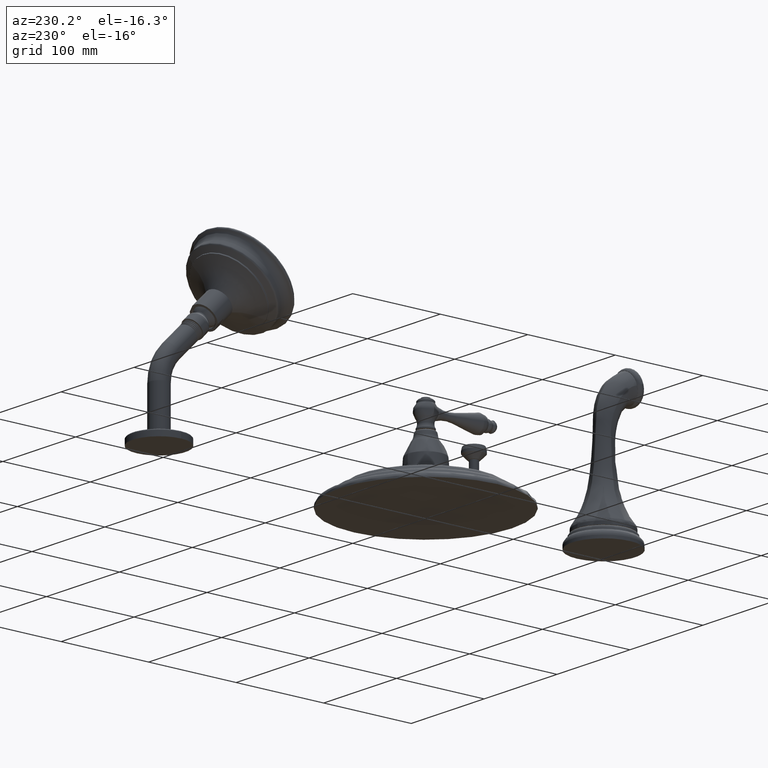
[diagram: clean part render]
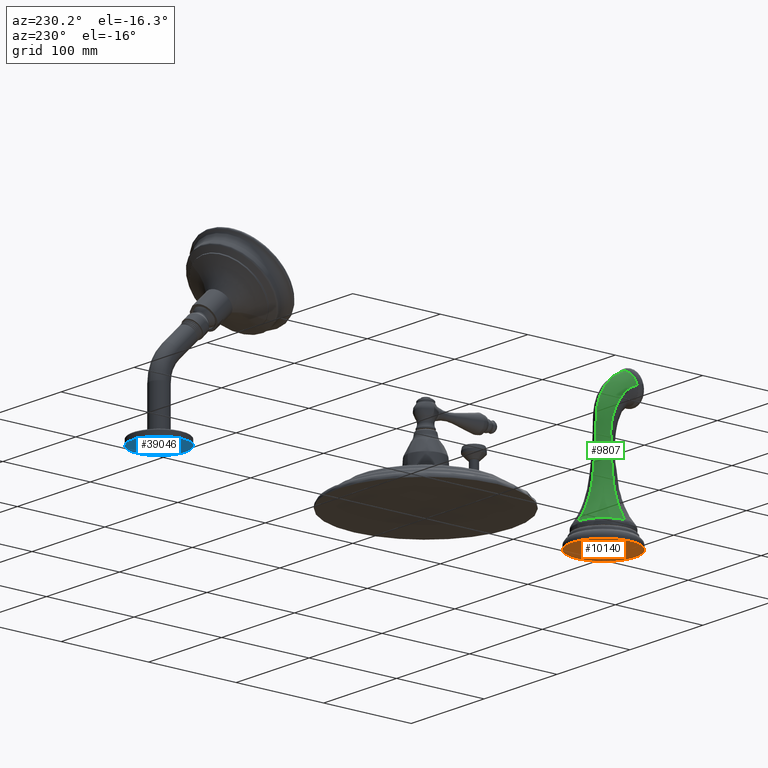
[diagram: same view with three faces highlighted in distinct colors, each labeled with its STEP entity id]
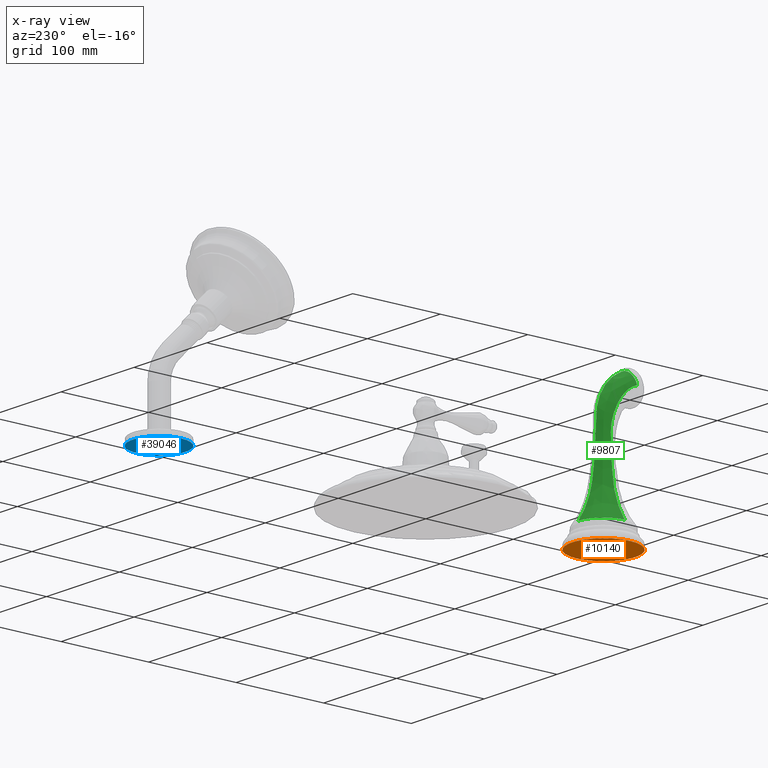
[diagram: x-ray of the same camera — body ghosted, the three highlighted faces saturated]
A machine part, auxiliary view with three faces highlighted in distinct colors.
The next image is the same camera in x-ray (body ghosted, the three faces saturated) — at least one of them is partly hidden behind the body in this view.
Their STEP definitions:

[orange] entity #10140 — the highlighted planar face has unit normal (0, 0, -1).
#8730=CARTESIAN_POINT('',(0.E0,-8.E0,0.E0));
#8731=DIRECTION('',(0.E0,0.E0,1.E0));
#8732=DIRECTION('',(-1.E0,0.E0,0.E0));
#8733=AXIS2_PLACEMENT_3D('',#8730,#8731,#8732);
#8743=CARTESIAN_POINT('',(0.E0,-8.E0,0.E0));
#8744=DIRECTION('',(0.E0,0.E0,-1.E0));
#8745=DIRECTION('',(-1.E0,0.E0,0.E0));
#8746=AXIS2_PLACEMENT_3D('',#8743,#8744,#8745);
#8764=CARTESIAN_POINT('',(-1.425E0,-8.E0,0.E0));
#8765=CARTESIAN_POINT('',(1.425E0,-8.E0,0.E0));
#8766=VERTEX_POINT('',#8764);
#8767=VERTEX_POINT('',#8765);
#10130=CARTESIAN_POINT('',(0.E0,-8.E0,0.E0));
#10131=DIRECTION('',(0.E0,0.E0,-1.E0));
#10132=DIRECTION('',(1.E0,0.E0,0.E0));
#10133=AXIS2_PLACEMENT_3D('',#10130,#10131,#10132);
#10134=PLANE('',#10133);
#10136=ORIENTED_EDGE('',*,*,#10135,.F.);
#10137=ORIENTED_EDGE('',*,*,#10120,.T.);
#10138=EDGE_LOOP('',(#10136,#10137));
#10139=FACE_OUTER_BOUND('',#10138,.F.);
#10140=ADVANCED_FACE('',(#10139),#10134,.T.);
#8734=CIRCLE('',#8733,1.425E0);
#8747=CIRCLE('',#8746,1.425E0);
#10120=EDGE_CURVE('',#8766,#8767,#8734,.T.);
#10135=EDGE_CURVE('',#8766,#8767,#8747,.T.);

[blue] entity #39046 — the highlighted planar face has unit normal (0, 0, -1).
#13049=CARTESIAN_POINT('',(0.E0,1.2E1,0.E0));
#13050=DIRECTION('',(0.E0,0.E0,1.E0));
#13051=DIRECTION('',(1.E0,0.E0,0.E0));
#13052=AXIS2_PLACEMENT_3D('',#13049,#13050,#13051);
#13054=CARTESIAN_POINT('',(0.E0,1.2E1,0.E0));
#13055=DIRECTION('',(0.E0,0.E0,-1.E0));
#13056=DIRECTION('',(1.E0,0.E0,0.E0));
#13057=AXIS2_PLACEMENT_3D('',#13054,#13055,#13056);
#34138=CARTESIAN_POINT('',(1.19E0,1.2E1,0.E0));
#34139=CARTESIAN_POINT('',(-1.19E0,1.2E1,0.E0));
#34140=VERTEX_POINT('',#34138);
#34141=VERTEX_POINT('',#34139);
#39037=CARTESIAN_POINT('',(0.E0,1.2E1,0.E0));
#39038=DIRECTION('',(0.E0,0.E0,-1.E0));
#39039=DIRECTION('',(-1.E0,0.E0,0.E0));
#39040=AXIS2_PLACEMENT_3D('',#39037,#39038,#39039);
#39041=PLANE('',#39040);
#39042=ORIENTED_EDGE('',*,*,#39030,.F.);
#39043=ORIENTED_EDGE('',*,*,#39019,.T.);
#39044=EDGE_LOOP('',(#39042,#39043));
#39045=FACE_OUTER_BOUND('',#39044,.F.);
#39046=ADVANCED_FACE('',(#39045),#39041,.T.);
#13053=CIRCLE('',#13052,1.19E0);
#13058=CIRCLE('',#13057,1.19E0);
#39019=EDGE_CURVE('',#34140,#34141,#13053,.T.);
#39030=EDGE_CURVE('',#34140,#34141,#13058,.T.);

[green] entity #9807 — the highlighted face is a freeform B-spline surface patch.
#8176=CARTESIAN_POINT('',(-7.087969589114E-12,-6.863279759927E0,
8.317716652312E-1));
#8248=CARTESIAN_POINT('',(0.E0,-8.815385568754E0,6.581615775398E0));
#8426=CARTESIAN_POINT('',(-6.362466257573E-1,-8.980058312882E0,
5.967048727690E0));
#8427=CARTESIAN_POINT('',(-6.362466257573E-1,-8.871701622522E0,
5.938014640013E0));
#8428=CARTESIAN_POINT('',(-6.226298542599E-1,-8.673438586693E0,
5.839737231137E0));
#8429=CARTESIAN_POINT('',(-5.749341128451E-1,-8.430683113720E0,
5.597810098959E0));
#8430=CARTESIAN_POINT('',(-5.237786746467E-1,-8.273326254666E0,
5.339209568681E0));
#8431=CARTESIAN_POINT('',(-4.827987102527E-1,-8.174048267443E0,
5.111189691136E0));
#8432=CARTESIAN_POINT('',(-4.537336415299E-1,-8.112804939938E0,
4.932872589252E0));
#8433=CARTESIAN_POINT('',(-4.280349562372E-1,-8.064686141295E0,
4.750505994858E0));
#8434=CARTESIAN_POINT('',(-4.074038385190E-1,-8.029609052083E0,
4.567399274393E0));
#8435=CARTESIAN_POINT('',(-3.958372093426E-1,-8.011152874988E0,
4.416774800060E0));
#8436=CARTESIAN_POINT('',(-3.908341089985E-1,-8.002851269955E0,
4.299397923622E0));
#8437=CARTESIAN_POINT('',(-3.895999174853E-1,-8.000255222405E0,
4.227016259826E0));
#8438=CARTESIAN_POINT('',(-3.899885836096E-1,-7.999951182802E0,
4.171512137149E0));
#8439=CARTESIAN_POINT('',(-3.908641714857E-1,-8.000027791249E0,
4.110588286457E0));
#8440=CARTESIAN_POINT('',(-3.926572374092E-1,-7.999979975375E0,
4.006722322181E0));
#8441=CARTESIAN_POINT('',(-3.964993559120E-1,-8.000006795614E0,
3.856929682730E0));
#8442=CARTESIAN_POINT('',(-4.029866002963E-1,-7.999998216827E0,
3.677854837556E0));
#8443=CARTESIAN_POINT('',(-4.142144242767E-1,-8.000001031224E0,
3.438979525963E0));
#8444=CARTESIAN_POINT('',(-4.329385076052E-1,-7.999999641503E0,
3.140701727960E0));
#8445=CARTESIAN_POINT('',(-4.583776371876E-1,-8.000000044379E0,
2.842899489879E0));
#8446=CARTESIAN_POINT('',(-4.817761022693E-1,-7.999999991816E0,
2.604953116269E0));
#8447=CARTESIAN_POINT('',(-5.101122290437E-1,-8.000000004725E0,
2.367501206055E0));
#8448=CARTESIAN_POINT('',(-5.685475604135E-1,-7.999999998394E0,
2.074002649391E0));
#8449=CARTESIAN_POINT('',(-6.710957148128E-1,-8.000000000431E0,
1.729944856828E0));
#8450=CARTESIAN_POINT('',(-8.433779836439E-1,-7.999999999730E0,
1.305504052936E0));
#8451=CARTESIAN_POINT('',(-1.012043530132E0,-8.000000000159E0,
1.011135780185E0));
#8452=CARTESIAN_POINT('',(-1.136721926895E0,-8.000000000182E0,
8.317705888197E-1));
#8454=CARTESIAN_POINT('',(-6.362466257573E-1,-8.980058312882E0,
5.967048727690E0));
#8462=CARTESIAN_POINT('',(0.E0,-8.815385568754E0,6.581615775398E0));
#8463=CARTESIAN_POINT('',(0.E0,-8.695893820128E0,6.522506674436E0));
#8464=CARTESIAN_POINT('',(0.E0,-8.468465494103E0,6.380957691460E0));
#8465=CARTESIAN_POINT('',(0.E0,-8.174602691440E0,6.106910266891E0));
#8466=CARTESIAN_POINT('',(0.E0,-7.978476817197E0,5.835496546680E0));
#8467=CARTESIAN_POINT('',(0.E0,-7.855173110165E0,5.598740596514E0));
#8468=CARTESIAN_POINT('',(0.E0,-7.780354085397E0,5.413045781095E0));
#8469=CARTESIAN_POINT('',(0.E0,-7.723855096451E0,5.220969500507E0));
#8470=CARTESIAN_POINT('',(0.E0,-7.686402798137E0,5.024323979807E0));
#8471=CARTESIAN_POINT('',(0.E0,-7.670736616694E0,4.858186052831E0));
#8472=CARTESIAN_POINT('',(0.E0,-7.668988524019E0,4.724862213888E0));
#8473=CARTESIAN_POINT('',(0.E0,-7.668540882498E0,4.641547030664E0));
#8474=CARTESIAN_POINT('',(0.E0,-7.667501118946E0,4.574897611035E0));
#8475=CARTESIAN_POINT('',(0.E0,-7.666372334715E0,4.508251263144E0));
#8476=CARTESIAN_POINT('',(0.E0,-7.663863807217E0,4.391629697954E0));
#8477=CARTESIAN_POINT('',(0.E0,-7.658749916400E0,4.225064525694E0));
#8478=CARTESIAN_POINT('',(0.E0,-7.650257938526E0,4.025273117790E0));
#8479=CARTESIAN_POINT('',(0.E0,-7.635750631925E0,3.759038943521E0));
#8480=CARTESIAN_POINT('',(0.E0,-7.611683232963E0,3.426603002622E0));
#8481=CARTESIAN_POINT('',(0.E0,-7.579666458831E0,3.094845180826E0));
#8482=CARTESIAN_POINT('',(0.E0,-7.549389700513E0,2.829930837161E0));
#8483=CARTESIAN_POINT('',(-1.162970910578E-14,-7.515684351850E0,
2.565477220136E0));
#8484=CARTESIAN_POINT('',(9.415616916801E-14,-7.469733371847E0,
2.235099502962E0));
#8485=CARTESIAN_POINT('',(-3.436852780836E-13,-7.369222741809E0,
1.847263426998E0));
#8486=CARTESIAN_POINT('',(1.738354275685E-12,-7.189594839474E0,
1.366468168995E0));
#8487=CARTESIAN_POINT('',(-7.087971200678E-12,-7.003679167502E0,
1.033743546435E0));
#8488=CARTESIAN_POINT('',(-7.087969589114E-12,-6.863279759927E0,
8.317716652312E-1));
#8490=CARTESIAN_POINT('',(0.E0,-8.815385568754E0,6.581615775398E0));
#8491=CARTESIAN_POINT('',(-8.328448855626E-2,-8.815385568754E0,
6.581615775398E0));
#8492=CARTESIAN_POINT('',(-2.498146402672E-1,-8.823959873938E0,
6.549616032813E0));
#8493=CARTESIAN_POINT('',(-4.616082816832E-1,-8.860585298206E0,
6.412928088597E0));
#8494=CARTESIAN_POINT('',(-6.031180544800E-1,-8.915401526236E0,
6.208351140509E0));
#8495=CARTESIAN_POINT('',(-6.362466257573E-1,-8.958502701082E0,
6.047495366116E0));
#8496=CARTESIAN_POINT('',(-6.362466257573E-1,-8.980058312882E0,
5.967048727690E0));
#8567=CARTESIAN_POINT('',(-7.087969589114E-12,-6.863279759927E0,
8.317716652312E-1));
#8568=CARTESIAN_POINT('',(-2.243136271801E-2,-6.863283157553E0,
8.317731653359E-1));
#8569=CARTESIAN_POINT('',(-6.727970818286E-2,-6.864589915539E0,
8.317397076192E-1));
#8570=CARTESIAN_POINT('',(-1.343300310455E-1,-6.870453261721E0,
8.316405824382E-1));
#8571=CARTESIAN_POINT('',(-2.008368725531E-1,-6.880194099123E0,
8.315299253693E-1));
#8572=CARTESIAN_POINT('',(-2.665130441596E-1,-6.893757952676E0,
8.314463810276E-1));
#8573=CARTESIAN_POINT('',(-3.311296889046E-1,-6.911077651670E0,
8.313661138573E-1));
#8574=CARTESIAN_POINT('',(-3.945047564731E-1,-6.932098033422E0,
8.312579207955E-1));
#8575=CARTESIAN_POINT('',(-4.564150501776E-1,-6.956719770985E0,
8.311226302050E-1));
#8576=CARTESIAN_POINT('',(-5.166276352312E-1,-6.984837614584E0,
8.309524952218E-1));
#8577=CARTESIAN_POINT('',(-5.749383324795E-1,-7.016343122792E0,
8.307554595629E-1));
#8578=CARTESIAN_POINT('',(-6.311852975862E-1,-7.051115965484E0,
8.305793061942E-1));
#8579=CARTESIAN_POINT('',(-6.851984435172E-1,-7.089039962093E0,
8.304769185983E-1));
#8580=CARTESIAN_POINT('',(-7.368226908570E-1,-7.129980502261E0,
8.304252879254E-1));
#8581=CARTESIAN_POINT('',(-7.859077125989E-1,-7.173804622072E0,
8.303791875852E-1));
#8582=CARTESIAN_POINT('',(-8.323003558335E-1,-7.220390417533E0,
8.302900987586E-1));
#8583=CARTESIAN_POINT('',(-8.758721710633E-1,-7.269586243474E0,
8.302048801609E-1));
#8584=CARTESIAN_POINT('',(-9.164946485191E-1,-7.321237133885E0,
8.301658207355E-1));
#8585=CARTESIAN_POINT('',(-9.540257481477E-1,-7.375187383488E0,
8.302051701192E-1));
#8586=CARTESIAN_POINT('',(-9.883435713317E-1,-7.431258491155E0,
8.302957716269E-1));
#8587=CARTESIAN_POINT('',(-1.019329931894E0,-7.489267214556E0,
8.304117420994E-1));
#8588=CARTESIAN_POINT('',(-1.046886326438E0,-7.549048180208E0,
8.305335178943E-1));
#8589=CARTESIAN_POINT('',(-1.070948104417E0,-7.610437340999E0,
8.306725652539E-1));
#8590=CARTESIAN_POINT('',(-1.091431213900E0,-7.673291834647E0,
8.308232714328E-1));
#8591=CARTESIAN_POINT('',(-1.108221670370E0,-7.737375218742E0,
8.309730970497E-1));
#8592=CARTESIAN_POINT('',(-1.121244812174E0,-7.802390060051E0,
8.311389051506E-1));
#8593=CARTESIAN_POINT('',(-1.130447439951E0,-7.868045911836E0,
8.313454951371E-1));
#8594=CARTESIAN_POINT('',(-1.135808559072E0,-7.934044492519E0,
8.315864689790E-1));
#8595=CARTESIAN_POINT('',(-1.136839009150E0,-7.978037285073E0,
8.317188651882E-1));
#8596=CARTESIAN_POINT('',(-1.136721926895E0,-8.000000000182E0,
8.317705888197E-1));
#8769=VERTEX_POINT('',#8248);
#8771=VERTEX_POINT('',#8454);
#8777=VERTEX_POINT('',#8176);
#8787=VERTEX_POINT('',#8596);
#9609=CARTESIAN_POINT('',(-1.140571304223E0,-7.999999999997E0,
8.262432758642E-1));
#9610=CARTESIAN_POINT('',(-1.014286163503E0,-7.999999999976E0,
1.007225672747E0));
#9611=CARTESIAN_POINT('',(-8.442234230497E-1,-7.999999999773E0,
1.303421236998E0));
#9612=CARTESIAN_POINT('',(-6.710957123698E-1,-8.000000000422E0,
1.729944855130E0));
#9613=CARTESIAN_POINT('',(-5.685475610826E-1,-7.999999998397E0,
2.074002649856E0));
#9614=CARTESIAN_POINT('',(-5.101122289608E-1,-8.000000004725E0,
2.367501205998E0));
#9615=CARTESIAN_POINT('',(-4.817761022845E-1,-7.999999991816E0,
2.604953116280E0));
#9616=CARTESIAN_POINT('',(-4.583776371788E-1,-8.000000044379E0,
2.842899489873E0));
#9617=CARTESIAN_POINT('',(-4.329385076083E-1,-7.999999641503E0,
3.140701727962E0));
#9618=CARTESIAN_POINT('',(-4.142144242763E-1,-8.000001031224E0,
3.438979525963E0));
#9619=CARTESIAN_POINT('',(-4.029866002964E-1,-7.999998216827E0,
3.677854837556E0));
#9620=CARTESIAN_POINT('',(-3.964993559120E-1,-8.000006795614E0,
3.856929682730E0));
#9621=CARTESIAN_POINT('',(-3.926572374092E-1,-7.999979975375E0,
4.006722322181E0));
#9622=CARTESIAN_POINT('',(-3.908641714857E-1,-8.000027791249E0,
4.110588286457E0));
#9623=CARTESIAN_POINT('',(-3.899885836096E-1,-7.999951182802E0,
4.171512137149E0));
#9624=CARTESIAN_POINT('',(-3.895999174853E-1,-8.000255222405E0,
4.227016259826E0));
#9625=CARTESIAN_POINT('',(-3.908341089985E-1,-8.002851269955E0,
4.299397923622E0));
#9626=CARTESIAN_POINT('',(-3.958372093426E-1,-8.011152874988E0,
4.416774800060E0));
#9627=CARTESIAN_POINT('',(-4.074038385190E-1,-8.029609052083E0,
4.567399274393E0));
#9628=CARTESIAN_POINT('',(-4.280349562372E-1,-8.064686141295E0,
4.750505994858E0));
#9629=CARTESIAN_POINT('',(-4.537336415299E-1,-8.112804939938E0,
4.932872589252E0));
#9630=CARTESIAN_POINT('',(-4.827987102527E-1,-8.174048267443E0,
5.111189691136E0));
#9631=CARTESIAN_POINT('',(-5.237786746467E-1,-8.273326254666E0,
5.339209568681E0));
#9632=CARTESIAN_POINT('',(-5.749341128451E-1,-8.430683113720E0,
5.597810098959E0));
#9633=CARTESIAN_POINT('',(-6.226298542599E-1,-8.673438586693E0,
5.839737231137E0));
#9634=CARTESIAN_POINT('',(-6.362466257573E-1,-8.871701622522E0,
5.938014640013E0));
#9635=CARTESIAN_POINT('',(-6.362466257573E-1,-8.980058312882E0,
5.967048727690E0));
#9636=CARTESIAN_POINT('',(-1.140571304223E0,-7.850553256725E0,
8.269509276585E-1));
#9637=CARTESIAN_POINT('',(-1.014286163503E0,-7.866506223070E0,
1.010789256725E0));
#9638=CARTESIAN_POINT('',(-8.442234230497E-1,-7.888006618698E0,
1.311891635261E0));
#9639=CARTESIAN_POINT('',(-6.710957123698E-1,-7.909877959586E0,
1.745665351490E0));
#9640=CARTESIAN_POINT('',(-5.685475610826E-1,-7.922939364538E0,
2.095575645756E0));
#9641=CARTESIAN_POINT('',(-5.101122289608E-1,-7.930105744813E0,
2.394000277280E0));
#9642=CARTESIAN_POINT('',(-4.817761022845E-1,-7.934927880643E0,
2.635252727594E0));
#9643=CARTESIAN_POINT('',(-4.583776371788E-1,-7.939271250090E0,
2.876981457950E0));
#9644=CARTESIAN_POINT('',(-4.329385076083E-1,-7.943750020064E0,
3.179456991095E0));
#9645=CARTESIAN_POINT('',(-4.142144242763E-1,-7.946969568047E0,
3.482367097175E0));
#9646=CARTESIAN_POINT('',(-4.029866002964E-1,-7.948780484636E0,
3.724937088158E0));
#9647=CARTESIAN_POINT('',(-3.964993559120E-1,-7.949768289557E0,
3.906781253248E0));
#9648=CARTESIAN_POINT('',(-3.926572374092E-1,-7.950241523178E0,
4.058883303459E0));
#9649=CARTESIAN_POINT('',(-3.908641714857E-1,-7.950470949446E0,
4.164368357909E0));
#9650=CARTESIAN_POINT('',(-3.899885836096E-1,-7.950450080228E0,
4.226218336800E0));
#9651=CARTESIAN_POINT('',(-3.895999174853E-1,-7.950784964341E0,
4.282649289464E0));
#9652=CARTESIAN_POINT('',(-3.908341089985E-1,-7.953330084148E0,
4.356190869198E0));
#9653=CARTESIAN_POINT('',(-3.958372093426E-1,-7.961537410434E0,
4.475428261077E0));
#9654=CARTESIAN_POINT('',(-4.074038385190E-1,-7.980573720713E0,
4.628354023141E0));
#9655=CARTESIAN_POINT('',(-4.280349562372E-1,-8.017280689289E0,
4.814071368879E0));
#9656=CARTESIAN_POINT('',(-4.537336415299E-1,-8.067991782602E0,
4.998784468100E0));
#9657=CARTESIAN_POINT('',(-4.827987102527E-1,-8.132732182876E0,
5.179087459674E0));
#9658=CARTESIAN_POINT('',(-5.237786746467E-1,-8.237886501201E0,
5.409080120191E0));
#9659=CARTESIAN_POINT('',(-5.749341128451E-1,-8.400727648252E0,
5.669740501279E0));
#9660=CARTESIAN_POINT('',(-6.226298542599E-1,-8.648188520708E0,
5.914845000438E0));
#9661=CARTESIAN_POINT('',(-6.362466257573E-1,-8.848875457096E0,
6.016428388314E0));
#9662=CARTESIAN_POINT('',(-6.362466257573E-1,-8.958502701082E0,
6.047495366116E0));
#9663=CARTESIAN_POINT('',(-1.081454966488E0,-7.552200234690E0,
8.283346075218E-1));
#9664=CARTESIAN_POINT('',(-9.628184200526E-1,-7.601893958423E0,
1.017758695923E0));
#9665=CARTESIAN_POINT('',(-8.030197928783E-1,-7.668493046884E0,
1.328485261354E0));
#9666=CARTESIAN_POINT('',(-6.402476750291E-1,-7.735166239335E0,
1.776484922172E0));
#9667=CARTESIAN_POINT('',(-5.437621472508E-1,-7.774220652984E0,
2.137855024818E0));
#9668=CARTESIAN_POINT('',(-4.887041350856E-1,-7.794603757500E0,
2.445927285268E0));
#9669=CARTESIAN_POINT('',(-4.619272541252E-1,-7.808706392796E0,
2.694445841989E0));
#9670=CARTESIAN_POINT('',(-4.397539723592E-1,-7.821422856336E0,
2.943421351811E0));
#9671=CARTESIAN_POINT('',(-4.156201939948E-1,-7.834689374318E0,
3.254930444618E0));
#9672=CARTESIAN_POINT('',(-3.977809941575E-1,-7.844441971976E0,
3.566857968223E0));
#9673=CARTESIAN_POINT('',(-3.870299726362E-1,-7.850124918492E0,
3.816636814661E0));
#9674=CARTESIAN_POINT('',(-3.807776637344E-1,-7.853338214500E0,
4.003904960100E0));
#9675=CARTESIAN_POINT('',(-3.770406611397E-1,-7.855103055278E0,
4.160484838637E0));
#9676=CARTESIAN_POINT('',(-3.752558294908E-1,-7.855935147723E0,
4.269200107106E0));
#9677=CARTESIAN_POINT('',(-3.743855931060E-1,-7.856176010825E0,
4.332752162497E0));
#9678=CARTESIAN_POINT('',(-3.739721763687E-1,-7.856690782789E0,
4.391395903224E0));
#9679=CARTESIAN_POINT('',(-3.750582228418E-1,-7.859021467571E0,
4.467422880064E0));
#9680=CARTESIAN_POINT('',(-3.796194640440E-1,-7.866539335897E0,
4.590501726053E0));
#9681=CARTESIAN_POINT('',(-3.902778683119E-1,-7.886186690063E0,
4.747789232458E0));
#9682=CARTESIAN_POINT('',(-4.093846394676E-1,-7.925383706855E0,
4.938076540648E0));
#9683=CARTESIAN_POINT('',(-4.332514466674E-1,-7.980352724084E0,
5.126668773845E0));
#9684=CARTESIAN_POINT('',(-4.603022442504E-1,-8.050890119290E0,
5.310189036391E0));
#9685=CARTESIAN_POINT('',(-4.985062834534E-1,-8.165609110536E0,
5.543597032253E0));
#9686=CARTESIAN_POINT('',(-5.462987903992E-1,-8.339187650219E0,
5.808177507572E0));
#9687=CARTESIAN_POINT('',(-5.907686620417E-1,-8.597109680760E0,
6.060836703550E0));
#9688=CARTESIAN_POINT('',(-6.032345917504E-1,-8.803233885142E0,
6.171482688990E0));
#9689=CARTESIAN_POINT('',(-6.031180544800E-1,-8.915401526236E0,
6.208351140509E0));
#9690=CARTESIAN_POINT('',(-8.280800912532E-1,-7.173790144002E0,
8.300429359235E-1));
#9691=CARTESIAN_POINT('',(-7.387294676982E-1,-7.270456002940E0,
1.026368487855E0));
#9692=CARTESIAN_POINT('',(-6.183344055903E-1,-7.399156970817E0,
1.349078531249E0));
#9693=CARTESIAN_POINT('',(-4.955875972316E-1,-7.525568093696E0,
1.814850310663E0));
#9694=CARTESIAN_POINT('',(-4.227425849536E-1,-7.597854821953E0,
2.190509398692E0));
#9695=CARTESIAN_POINT('',(-3.810832912620E-1,-7.633147867249E0,
2.510617809159E0));
#9696=CARTESIAN_POINT('',(-3.607283739866E-1,-7.658374274755E0,
2.767882106927E0));
#9697=CARTESIAN_POINT('',(-3.437625097866E-1,-7.681108345562E0,
3.025604440442E0));
#9698=CARTESIAN_POINT('',(-3.252721262184E-1,-7.705067217185E0,
3.348157490442E0));
#9699=CARTESIAN_POINT('',(-3.115007332418E-1,-7.723003838558E0,
3.671219232169E0));
#9700=CARTESIAN_POINT('',(-3.031322746988E-1,-7.733739043619E0,
3.929926372559E0));
#9701=CARTESIAN_POINT('',(-2.982096115048E-1,-7.739990228047E0,
4.123952693661E0));
#9702=CARTESIAN_POINT('',(-2.952300364053E-1,-7.743668554710E0,
4.286019163391E0));
#9703=CARTESIAN_POINT('',(-2.937443344696E-1,-7.745497259143E0,
4.398879018303E0));
#9704=CARTESIAN_POINT('',(-2.930325125405E-1,-7.746228937855E0,
4.464326645714E0));
#9705=CARTESIAN_POINT('',(-2.926641316103E-1,-7.747071692569E0,
4.526521604755E0));
#9706=CARTESIAN_POINT('',(-2.933815053350E-1,-7.748771205556E0,
4.606071591068E0));
#9707=CARTESIAN_POINT('',(-2.966080972847E-1,-7.754241339004E0,
4.734325888108E0));
#9708=CARTESIAN_POINT('',(-3.042993421160E-1,-7.773317199722E0,
4.896742080924E0));
#9709=CARTESIAN_POINT('',(-3.182350279307E-1,-7.813866750930E0,
5.091609682713E0));
#9710=CARTESIAN_POINT('',(-3.357637193866E-1,-7.872202649712E0,
5.283562182168E0));
#9711=CARTESIAN_POINT('',(-3.557504184234E-1,-7.947681872519E0,
5.469681511511E0));
#9712=CARTESIAN_POINT('',(-3.841239032325E-1,-8.070489331141E0,
5.706256472605E0));
#9713=CARTESIAN_POINT('',(-4.198754287142E-1,-8.257141482441E0,
5.975253799624E0));
#9714=CARTESIAN_POINT('',(-4.530013410335E-1,-8.530652124002E0,
6.239344766338E0));
#9715=CARTESIAN_POINT('',(-4.618584533380E-1,-8.745122599571E0,
6.365602120694E0));
#9716=CARTESIAN_POINT('',(-4.616082816832E-1,-8.860585298206E0,
6.412928088597E0));
#9717=CARTESIAN_POINT('',(-4.482741010092E-1,-6.921757835207E0,
8.311638284138E-1));
#9718=CARTESIAN_POINT('',(-4.004370305899E-1,-7.052954678596E0,
1.032022945952E0));
#9719=CARTESIAN_POINT('',(-3.359701339640E-1,-7.226897723271E0,
1.362700073745E0));
#9720=CARTESIAN_POINT('',(-2.702226468031E-1,-7.395650685692E0,
1.840366764413E0));
#9721=CARTESIAN_POINT('',(-2.311878392336E-1,-7.490599434310E0,
2.225587200285E0));
#9722=CARTESIAN_POINT('',(-2.088477806081E-1,-7.534782439225E0,
2.553756610154E0));
#9723=CARTESIAN_POINT('',(-1.979128795989E-1,-7.566999850236E0,
2.816690229300E0));
#9724=CARTESIAN_POINT('',(-1.887277675662E-1,-7.595977870823E0,
3.080091994161E0));
#9725=CARTESIAN_POINT('',(-1.787224605337E-1,-7.626624591474E0,
3.409897198716E0));
#9726=CARTESIAN_POINT('',(-1.712321865547E-1,-7.649686174549E0,
3.740332808747E0));
#9727=CARTESIAN_POINT('',(-1.666602017016E-1,-7.663598152853E0,
4.004965271096E0));
#9728=CARTESIAN_POINT('',(-1.639490623663E-1,-7.671762756241E0,
4.203507278958E0));
#9729=CARTESIAN_POINT('',(-1.623045739965E-1,-7.676663340310E0,
4.369163952169E0));
#9730=CARTESIAN_POINT('',(-1.614523053366E-1,-7.679117329663E0,
4.484889478067E0));
#9731=CARTESIAN_POINT('',(-1.610610177040E-1,-7.680177944469E0,
4.551424505843E0));
#9732=CARTESIAN_POINT('',(-1.608536477494E-1,-7.681202835193E0,
4.616613745496E0));
#9733=CARTESIAN_POINT('',(-1.612006233158E-1,-7.682105436253E0,
4.698850340875E0));
#9734=CARTESIAN_POINT('',(-1.628292221130E-1,-7.685188335966E0,
4.830858107297E0));
#9735=CARTESIAN_POINT('',(-1.667618377769E-1,-7.702595371645E0,
4.996438554990E0));
#9736=CARTESIAN_POINT('',(-1.739625465750E-1,-7.742318856418E0,
5.193460136869E0));
#9737=CARTESIAN_POINT('',(-1.831003589864E-1,-7.801038967806E0,
5.386466782570E0));
#9738=CARTESIAN_POINT('',(-1.936125888537E-1,-7.877821483875E0,
5.573164146977E0));
#9739=CARTESIAN_POINT('',(-2.086595611353E-1,-8.003134084939E0,
5.810810186027E0));
#9740=CARTESIAN_POINT('',(-2.278527291236E-1,-8.197950682325E0,
6.082178478237E0));
#9741=CARTESIAN_POINT('',(-2.455663813681E-1,-8.484247292197E0,
6.354639022858E0));
#9742=CARTESIAN_POINT('',(-2.500116916990E-1,-8.706046167950E0,
6.493416269073E0));
#9743=CARTESIAN_POINT('',(-2.498146402672E-1,-8.823959873938E0,
6.549616032813E0));
#9744=CARTESIAN_POINT('',(-1.494434868466E-1,-6.863063532043E0,
8.314392425798E-1));
#9745=CARTESIAN_POINT('',(-1.334779809402E-1,-7.003555394489E0,
1.033414537230E0));
#9746=CARTESIAN_POINT('',(-1.119662765723E-1,-7.189550576074E0,
1.366093486244E0));
#9747=CARTESIAN_POINT('',(-9.003845223432E-2,-7.369222743730E0,
1.846786336101E0));
#9748=CARTESIAN_POINT('',(-7.702815188018E-2,-7.469733370944E0,
2.234443928766E0));
#9749=CARTESIAN_POINT('',(-6.959186747095E-2,-7.515684353108E0,
2.564671185914E0));
#9750=CARTESIAN_POINT('',(-6.596065420035E-2,-7.549389698436E0,
2.829006487792E0));
#9751=CARTESIAN_POINT('',(-6.289573156988E-2,-7.579666470406E0,
3.093808663088E0));
#9752=CARTESIAN_POINT('',(-5.956456029770E-2,-7.611683145165E0,
3.425424341610E0));
#9753=CARTESIAN_POINT('',(-5.707121516240E-2,-7.635750869220E0,
3.757717189112E0));
#9754=CARTESIAN_POINT('',(-5.555219105135E-2,-7.650256879105E0,
4.023840978591E0));
#9755=CARTESIAN_POINT('',(-5.465099614527E-2,-7.658752763860E0,
4.223538300741E0));
#9756=CARTESIAN_POINT('',(-5.410965268975E-2,-7.663858105790E0,
4.390060286651E0));
#9757=CARTESIAN_POINT('',(-5.382412280612E-2,-7.666379032552E0,
4.506584377502E0));
#9758=CARTESIAN_POINT('',(-5.369951056126E-2,-7.667495863710E0,
4.573277242386E0));
#9759=CARTESIAN_POINT('',(-5.363642454593E-2,-7.668527191872E0,
4.639637498615E0));
#9760=CARTESIAN_POINT('',(-5.375315952102E-2,-7.669031681477E0,
4.722776820177E0));
#9761=CARTESIAN_POINT('',(-5.428737980648E-2,-7.670982611644E0,
4.855926285207E0));
#9762=CARTESIAN_POINT('',(-5.557154163787E-2,-7.687101635692E0,
5.022119873962E0));
#9763=CARTESIAN_POINT('',(-5.793137316710E-2,-7.725312696177E0,
5.219075103023E0));
#9764=CARTESIAN_POINT('',(-6.094303352956E-2,-7.782680122784E0,
5.411564954424E0));
#9765=CARTESIAN_POINT('',(-6.443150365560E-2,-7.858337294303E0,
5.597653838086E0));
#9766=CARTESIAN_POINT('',(-6.945897133850E-2,-7.982520890681E0,
5.834811853590E0));
#9767=CARTESIAN_POINT('',(-7.593987709121E-2,-8.178847764969E0,
6.106368986595E0));
#9768=CARTESIAN_POINT('',(-8.191356335017E-2,-8.470709705899E0,
6.380692465870E0));
#9769=CARTESIAN_POINT('',(-8.335039961378E-2,-8.696383079903E0,
6.522637771198E0));
#9770=CARTESIAN_POINT('',(-8.328448855626E-2,-8.815385568754E0,
6.581615775398E0));
#9771=CARTESIAN_POINT('',(0.E0,-6.863063532044E0,8.314605637780E-1));
#9772=CARTESIAN_POINT('',(0.E0,-7.003555394495E0,1.033521955679E0));
#9773=CARTESIAN_POINT('',(0.E0,-7.189550576131E0,1.366349723885E0));
#9774=CARTESIAN_POINT('',(0.E0,-7.369222743624E0,1.847263425737E0));
#9775=CARTESIAN_POINT('',(0.E0,-7.469733371350E0,2.235099503308E0));
#9776=CARTESIAN_POINT('',(0.E0,-7.515684351911E0,2.565477220093E0));
#9777=CARTESIAN_POINT('',(0.E0,-7.549389700501E0,2.829930837169E0));
#9778=CARTESIAN_POINT('',(0.E0,-7.579666458838E0,3.094845180822E0));
#9779=CARTESIAN_POINT('',(0.E0,-7.611683232961E0,3.426603002623E0));
#9780=CARTESIAN_POINT('',(0.E0,-7.635750631926E0,3.759038943521E0));
#9781=CARTESIAN_POINT('',(0.E0,-7.650257938525E0,4.025273117790E0));
#9782=CARTESIAN_POINT('',(0.E0,-7.658749916400E0,4.225064525694E0));
#9783=CARTESIAN_POINT('',(0.E0,-7.663863807217E0,4.391629697954E0));
#9784=CARTESIAN_POINT('',(0.E0,-7.666372334715E0,4.508251263144E0));
#9785=CARTESIAN_POINT('',(0.E0,-7.667501118946E0,4.574897611035E0));
#9786=CARTESIAN_POINT('',(0.E0,-7.668540882498E0,4.641547030664E0));
#9787=CARTESIAN_POINT('',(0.E0,-7.668988524019E0,4.724862213888E0));
#9788=CARTESIAN_POINT('',(0.E0,-7.670736616694E0,4.858186052831E0));
#9789=CARTESIAN_POINT('',(0.E0,-7.686402798137E0,5.024323979807E0));
#9790=CARTESIAN_POINT('',(0.E0,-7.723855096451E0,5.220969500507E0));
#9791=CARTESIAN_POINT('',(0.E0,-7.780354085397E0,5.413045781095E0));
#9792=CARTESIAN_POINT('',(0.E0,-7.855173110165E0,5.598740596514E0));
#9793=CARTESIAN_POINT('',(0.E0,-7.978476817197E0,5.835496546680E0));
#9794=CARTESIAN_POINT('',(0.E0,-8.174602691440E0,6.106910266891E0));
#9795=CARTESIAN_POINT('',(0.E0,-8.468465494103E0,6.380957691460E0));
#9796=CARTESIAN_POINT('',(0.E0,-8.695893820128E0,6.522506674436E0));
#9797=CARTESIAN_POINT('',(0.E0,-8.815385568754E0,6.581615775398E0));
#9798=B_SPLINE_SURFACE_WITH_KNOTS('',3,3,((#9609,#9610,#9611,#9612,#9613,#9614,
#9615,#9616,#9617,#9618,#9619,#9620,#9621,#9622,#9623,#9624,#9625,#9626,#9627,
#9628,#9629,#9630,#9631,#9632,#9633,#9634,#9635),(#9636,#9637,#9638,#9639,#9640,
#9641,#9642,#9643,#9644,#9645,#9646,#9647,#9648,#9649,#9650,#9651,#9652,#9653,
#9654,#9655,#9656,#9657,#9658,#9659,#9660,#9661,#9662),(#9663,#9664,#9665,#9666,
#9667,#9668,#9669,#9670,#9671,#9672,#9673,#9674,#9675,#9676,#9677,#9678,#9679,
#9680,#9681,#9682,#9683,#9684,#9685,#9686,#9687,#9688,#9689),(#9690,#9691,#9692,
#9693,#9694,#9695,#9696,#9697,#9698,#9699,#9700,#9701,#9702,#9703,#9704,#9705,
#9706,#9707,#9708,#9709,#9710,#9711,#9712,#9713,#9714,#9715,#9716),(#9717,#9718,
#9719,#9720,#9721,#9722,#9723,#9724,#9725,#9726,#9727,#9728,#9729,#9730,#9731,
#9732,#9733,#9734,#9735,#9736,#9737,#9738,#9739,#9740,#9741,#9742,#9743),(#9744,
#9745,#9746,#9747,#9748,#9749,#9750,#9751,#9752,#9753,#9754,#9755,#9756,#9757,
#9758,#9759,#9760,#9761,#9762,#9763,#9764,#9765,#9766,#9767,#9768,#9769,#9770),(
#9771,#9772,#9773,#9774,#9775,#9776,#9777,#9778,#9779,#9780,#9781,#9782,#9783,
#9784,#9785,#9786,#9787,#9788,#9789,#9790,#9791,#9792,#9793,#9794,#9795,#9796,
#9797)),.UNSPECIFIED.,.F.,.F.,.F.,(4,1,1,1,4),(4,1,1,1,1,1,1,1,1,1,1,1,1,1,1,1,
1,1,1,1,1,1,1,1,4),(7.5E-1,8.125E-1,8.75E-1,9.375E-1,1.E0),(9.622415027486E-3,
1.25E-1,1.875E-1,2.5E-1,3.125E-1,3.4375E-1,3.75E-1,4.375E-1,5.E-1,5.3125E-1,
5.625E-1,5.9375E-1,6.09375E-1,6.171875E-1,6.25E-1,6.40625E-1,6.5625E-1,6.875E-1,
7.1875E-1,7.5E-1,7.8125E-1,8.125E-1,8.75E-1,9.375E-1,1.E0),.UNSPECIFIED.);
#9799=ORIENTED_EDGE('',*,*,#9081,.F.);
#9801=ORIENTED_EDGE('',*,*,#9800,.T.);
#9802=ORIENTED_EDGE('',*,*,#9602,.T.);
#9804=ORIENTED_EDGE('',*,*,#9803,.F.);
#9805=EDGE_LOOP('',(#9799,#9801,#9802,#9804));
#9806=FACE_OUTER_BOUND('',#9805,.F.);
#9807=ADVANCED_FACE('',(#9806),#9798,.F.);
#8453=B_SPLINE_CURVE_WITH_KNOTS('',3,(#8426,#8427,#8428,#8429,#8430,#8431,#8432,
#8433,#8434,#8435,#8436,#8437,#8438,#8439,#8440,#8441,#8442,#8443,#8444,#8445,
#8446,#8447,#8448,#8449,#8450,#8451,#8452),.UNSPECIFIED.,.F.,.F.,(4,1,1,1,1,1,1,
1,1,1,1,1,1,1,1,1,1,1,1,1,1,1,1,1,4),(0.E0,6.318212946956E-2,1.263642589391E-1,
1.895463884087E-1,2.211374531434E-1,2.527285178782E-1,2.843195826130E-1,
3.159106473478E-1,3.475017120826E-1,3.632972444499E-1,3.790927768173E-1,
3.869905430010E-1,3.948883091847E-1,4.106838415521E-1,4.422749062869E-1,
4.738659710217E-1,5.054570357564E-1,5.686391652260E-1,6.318212946956E-1,
6.634123594303E-1,6.950034241651E-1,7.581855536347E-1,8.213676831042E-1,
8.845498125738E-1,1.E0),.UNSPECIFIED.);
#8489=B_SPLINE_CURVE_WITH_KNOTS('',3,(#8462,#8463,#8464,#8465,#8466,#8467,#8468,
#8469,#8470,#8471,#8472,#8473,#8474,#8475,#8476,#8477,#8478,#8479,#8480,#8481,
#8482,#8483,#8484,#8485,#8486,#8487,#8488),.UNSPECIFIED.,.F.,.F.,(4,1,1,1,1,1,1,
1,1,1,1,1,1,1,1,1,1,1,1,1,1,1,1,1,4),(0.E0,6.311101696282E-2,1.262220339256E-1,
1.893330508885E-1,2.208885593699E-1,2.524440678513E-1,2.839995763327E-1,
3.155550848141E-1,3.471105932955E-1,3.628883475362E-1,3.786661017769E-1,
3.865549788973E-1,3.944438560176E-1,4.102216102583E-1,4.417771187397E-1,
4.733326272212E-1,5.048881357026E-1,5.679991526654E-1,6.311101696282E-1,
6.626656781096E-1,6.942211865910E-1,7.573322035539E-1,8.204432205167E-1,
8.835542374795E-1,1.E0),.UNSPECIFIED.);
#8497=B_SPLINE_CURVE_WITH_KNOTS('',3,(#8490,#8491,#8492,#8493,#8494,#8495,
#8496),.UNSPECIFIED.,.F.,.F.,(4,1,1,1,4),(0.E0,2.5E-1,5.E-1,7.5E-1,1.E0),
.UNSPECIFIED.);
#8597=B_SPLINE_CURVE_WITH_KNOTS('',3,(#8567,#8568,#8569,#8570,#8571,#8572,#8573,
#8574,#8575,#8576,#8577,#8578,#8579,#8580,#8581,#8582,#8583,#8584,#8585,#8586,
#8587,#8588,#8589,#8590,#8591,#8592,#8593,#8594,#8595,#8596),.UNSPECIFIED.,.F.,
.F.,(4,1,1,1,1,1,1,1,1,1,1,1,1,1,1,1,1,1,1,1,1,1,1,1,1,1,1,4),(0.E0,
3.703703703704E-2,7.407407407407E-2,1.111111111111E-1,1.481481481481E-1,
1.851851851852E-1,2.222222222222E-1,2.592592592593E-1,2.962962962963E-1,
3.333333333333E-1,3.703703703704E-1,4.074074074074E-1,4.444444444444E-1,
4.814814814815E-1,5.185185185185E-1,5.555555555556E-1,5.925925925926E-1,
6.296296296296E-1,6.666666666667E-1,7.037037037037E-1,7.407407407407E-1,
7.777777777778E-1,8.148148148148E-1,8.518518518519E-1,8.888888888889E-1,
9.259259259259E-1,9.629629629630E-1,1.E0),.UNSPECIFIED.);
#9081=EDGE_CURVE('',#8769,#8777,#8489,.T.);
#9602=EDGE_CURVE('',#8771,#8787,#8453,.T.);
#9800=EDGE_CURVE('',#8769,#8771,#8497,.T.);
#9803=EDGE_CURVE('',#8777,#8787,#8597,.T.);